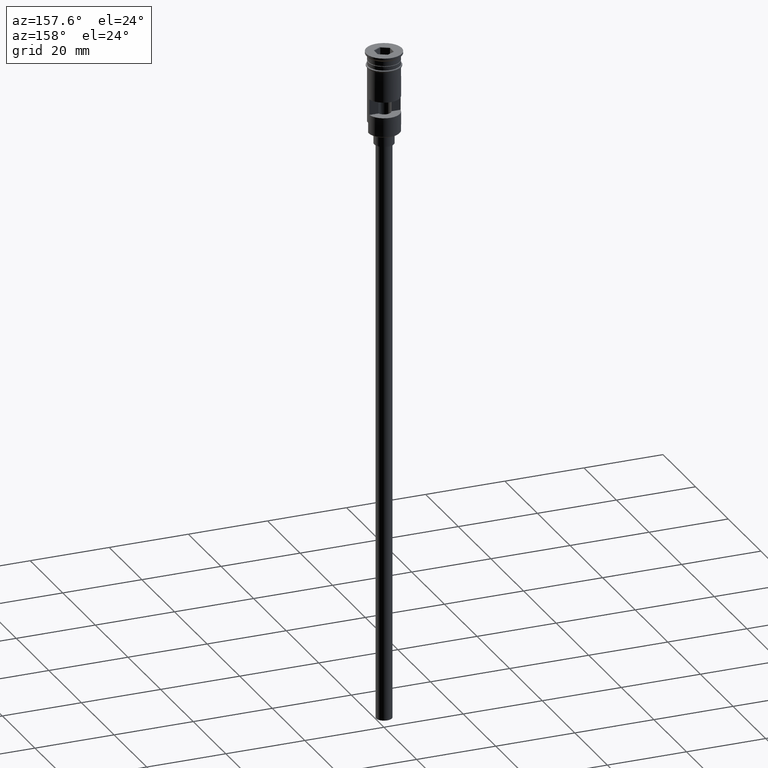
[diagram: clean part render]
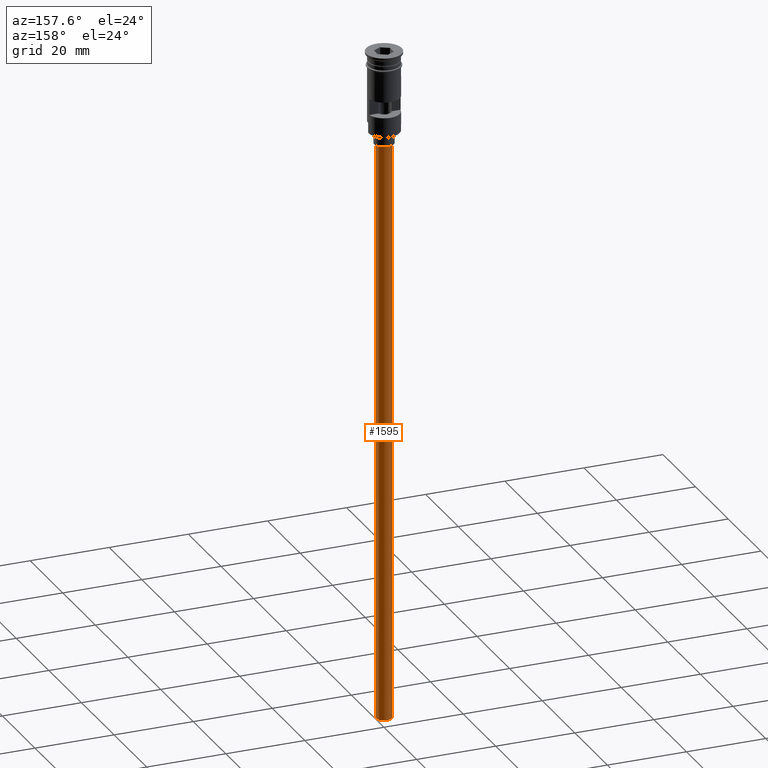
[diagram: same view with one face highlighted and labeled with its STEP entity id]
A machine part, auxiliary view. The second image highlights one B-rep face of the part: STEP entity #1595.
In plain terms, the highlighted cylindrical surface (edge-blend (fillet) strip) has radius 2 mm, axis along (-0, -0, 1).
Its self-contained STEP definition (entity closure, byte-faithful):
#21 = AXIS2_PLACEMENT_3D ( 'NONE', #344, #1294, #1073 ) ;
#98 = CYLINDRICAL_SURFACE ( 'NONE', #21, 2.000000000000000000 ) ;
#117 = DIRECTION ( 'NONE',  ( -0.000000000000000000, -0.000000000000000000, 1.000000000000000000 ) ) ;
#249 = CARTESIAN_POINT ( 'NONE',  ( 2.000000000000000000, 0.000000000000000000, -170.4999999999999716 ) ) ;
#291 = DIRECTION ( 'NONE',  ( -0.000000000000000000, -0.000000000000000000, 1.000000000000000000 ) ) ;
#295 = AXIS2_PLACEMENT_3D ( 'NONE', #659, #651, #523 ) ;
#305 = ORIENTED_EDGE ( 'NONE', *, *, #447, .F. ) ;
#344 = CARTESIAN_POINT ( 'NONE',  ( 0.000000000000000000, 0.000000000000000000, -170.4999999999999716 ) ) ;
#376 = VECTOR ( 'NONE', #117, 1000.000000000000000 ) ;
#412 = LINE ( 'NONE', #645, #1394 ) ;
#418 = ORIENTED_EDGE ( 'NONE', *, *, #785, .T. ) ;
#447 = EDGE_CURVE ( 'NONE', #682, #1378, #1417, .T. ) ;
#523 = DIRECTION ( 'NONE',  ( -1.000000000000000000, 0.000000000000000000, 0.000000000000000000 ) ) ;
#586 = FACE_OUTER_BOUND ( 'NONE', #1532, .T. ) ;
#645 = CARTESIAN_POINT ( 'NONE',  ( -2.000000000000000000, 2.449293598294706414E-16, -170.4999999999999716 ) ) ;
#651 = DIRECTION ( 'NONE',  ( 0.000000000000000000, 0.000000000000000000, -1.000000000000000000 ) ) ;
#659 = CARTESIAN_POINT ( 'NONE',  ( 0.000000000000000000, 0.000000000000000000, -23.49999999999999645 ) ) ;
#682 = VERTEX_POINT ( 'NONE', #1238 ) ;
#710 = CIRCLE ( 'NONE', #295, 2.000000000000000000 ) ;
#735 = ORIENTED_EDGE ( 'NONE', *, *, #1559, .T. ) ;
#785 = EDGE_CURVE ( 'NONE', #682, #1123, #412, .T. ) ;
#828 = LINE ( 'NONE', #249, #376 ) ;
#949 = DIRECTION ( 'NONE',  ( 0.000000000000000000, 0.000000000000000000, -1.000000000000000000 ) ) ;
#963 = DIRECTION ( 'NONE',  ( -1.000000000000000000, 0.000000000000000000, 0.000000000000000000 ) ) ;
#1001 = AXIS2_PLACEMENT_3D ( 'NONE', #1597, #949, #963 ) ;
#1073 = DIRECTION ( 'NONE',  ( 1.000000000000000000, 0.000000000000000000, 0.000000000000000000 ) ) ;
#1111 = CARTESIAN_POINT ( 'NONE',  ( 2.000000000000000000, 0.000000000000000000, -170.4999999999999716 ) ) ;
#1123 = VERTEX_POINT ( 'NONE', #1550 ) ;
#1233 = VERTEX_POINT ( 'NONE', #1333 ) ;
#1238 = CARTESIAN_POINT ( 'NONE',  ( -2.000000000000000000, 2.449293598294706414E-16, -170.4999999999999716 ) ) ;
#1255 = EDGE_CURVE ( 'NONE', #1378, #1233, #828, .T. ) ;
#1294 = DIRECTION ( 'NONE',  ( -0.000000000000000000, -0.000000000000000000, 1.000000000000000000 ) ) ;
#1333 = CARTESIAN_POINT ( 'NONE',  ( 2.000000000000000000, 0.000000000000000000, -23.49999999999999645 ) ) ;
#1339 = ORIENTED_EDGE ( 'NONE', *, *, #1255, .F. ) ;
#1378 = VERTEX_POINT ( 'NONE', #1111 ) ;
#1394 = VECTOR ( 'NONE', #291, 1000.000000000000000 ) ;
#1417 = CIRCLE ( 'NONE', #1001, 2.000000000000000000 ) ;
#1532 = EDGE_LOOP ( 'NONE', ( #305, #418, #735, #1339 ) ) ;
#1550 = CARTESIAN_POINT ( 'NONE',  ( -2.000000000000000000, 2.449293598294706414E-16, -23.49999999999999645 ) ) ;
#1559 = EDGE_CURVE ( 'NONE', #1123, #1233, #710, .T. ) ;
#1595 = ADVANCED_FACE ( 'NONE', ( #586 ), #98, .T. ) ;
#1597 = CARTESIAN_POINT ( 'NONE',  ( 0.000000000000000000, 0.000000000000000000, -170.4999999999999716 ) ) ;